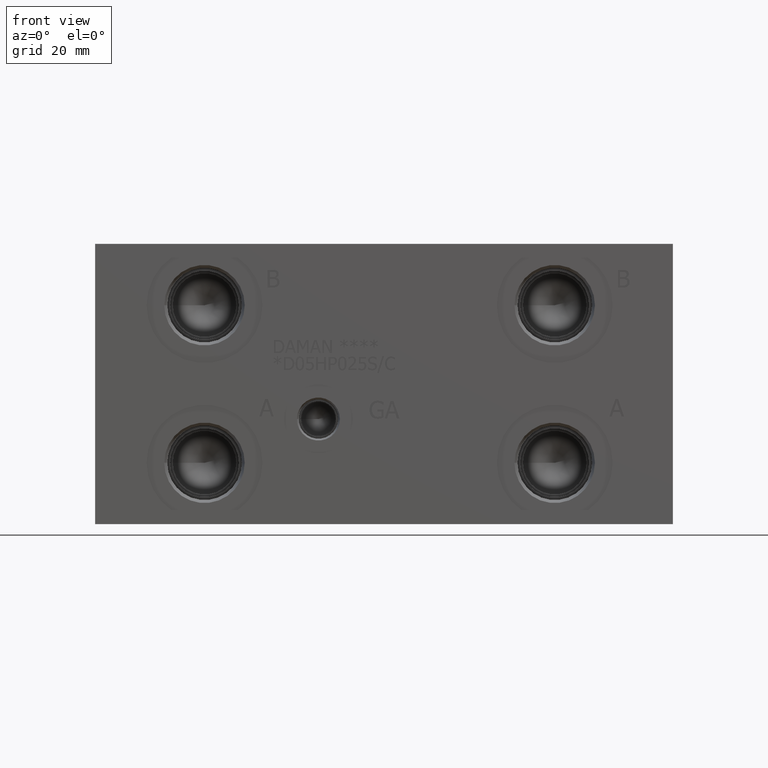
[diagram: clean part render]
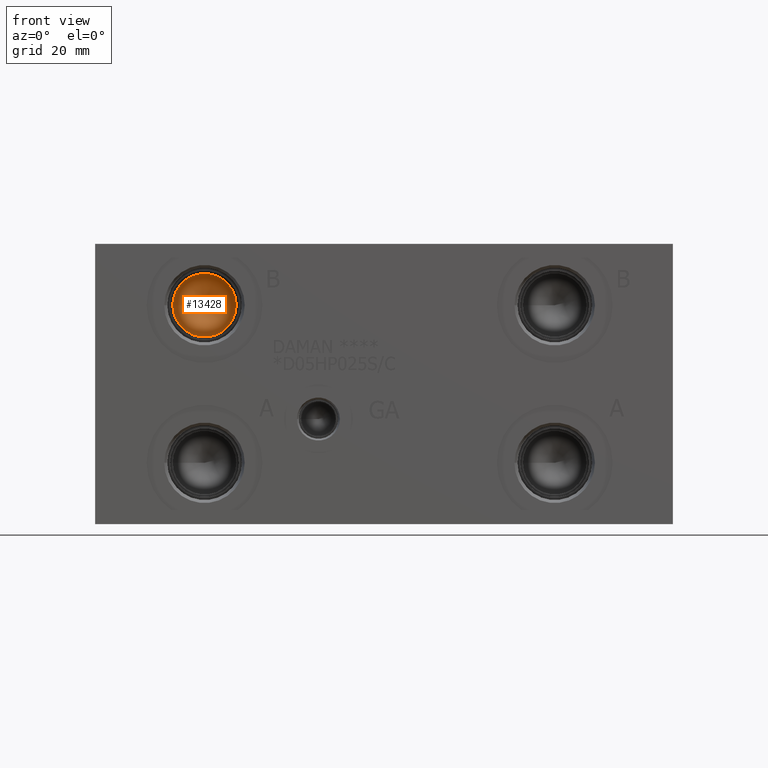
[diagram: same view with one face highlighted and labeled with its STEP entity id]
A machine part, front view. The second image highlights one B-rep face of the part: STEP entity #13428.
In plain terms, the highlighted conical surface has half-angle 60 deg.
Its self-contained STEP definition (entity closure, byte-faithful):
#132=CONICAL_SURFACE('',#14135,5.7531,1.0471975511966);
#331=CIRCLE('',#14136,11.5062);
#332=CIRCLE('',#14137,11.5062);
#1573=FACE_OUTER_BOUND('',#2349,.T.);
#2349=EDGE_LOOP('',(#11679,#11680,#11681,#11682));
#3605=LINE('',#22930,#4812);
#4812=VECTOR('',#16722,5.7531);
#6354=VERTEX_POINT('',#22926);
#6355=VERTEX_POINT('',#22927);
#6356=VERTEX_POINT('',#22929);
#8177=EDGE_CURVE('',#6354,#6355,#331,.T.);
#8178=EDGE_CURVE('',#6355,#6356,#3605,.T.);
#8179=EDGE_CURVE('',#6355,#6354,#332,.T.);
#11679=ORIENTED_EDGE('',*,*,#8177,.T.);
#11680=ORIENTED_EDGE('',*,*,#8178,.T.);
#11681=ORIENTED_EDGE('',*,*,#8178,.F.);
#11682=ORIENTED_EDGE('',*,*,#8179,.T.);
#13428=ADVANCED_FACE('',(#1573),#132,.F.);
#14135=AXIS2_PLACEMENT_3D('',#22925,#16718,#16719);
#14136=AXIS2_PLACEMENT_3D('',#22928,#16720,#16721);
#14137=AXIS2_PLACEMENT_3D('',#22931,#16723,#16724);
#16718=DIRECTION('center_axis',(0.,-1.,0.));
#16719=DIRECTION('ref_axis',(1.,0.,0.));
#16720=DIRECTION('center_axis',(0.,-1.,0.));
#16721=DIRECTION('ref_axis',(1.,0.,0.));
#16722=DIRECTION('',(0.866025403784439,0.5,1.06057523872491E-16));
#16723=DIRECTION('center_axis',(0.,-1.,0.));
#16724=DIRECTION('ref_axis',(1.,0.,0.));
#22925=CARTESIAN_POINT('Origin',(39.6748,34.1885438336748,79.375));
#22926=CARTESIAN_POINT('',(51.181,30.86699,79.375));
#22927=CARTESIAN_POINT('',(28.1686,30.86699,79.375));
#22928=CARTESIAN_POINT('Origin',(39.6748,30.86699,79.375));
#22929=CARTESIAN_POINT('',(39.6748,37.5100976673497,79.375));
#22930=CARTESIAN_POINT('',(33.9217,34.1885438336748,79.375));
#22931=CARTESIAN_POINT('Origin',(39.6748,30.86699,79.375));